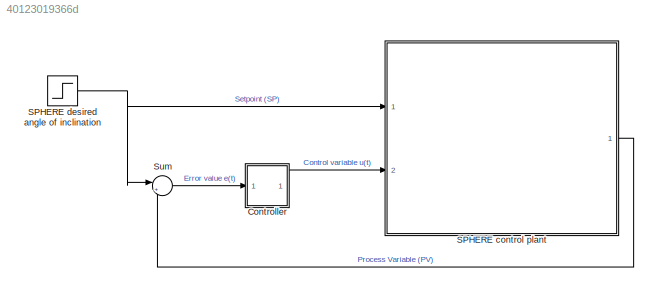
MODEL slx_40123019366d
KIND model
CONFIG AbsTol = auto
CONFIG EnableMultiTasking = off
CONFIG FixedStep = 0.01428571
CONFIG MaxStep = auto
CONFIG MinStep = auto
CONFIG RelTol = 1e-3
CONFIG SampleTimeConstraint = Unconstrained
CONFIG Solver = ode4
CONFIG SolverName = ode4
CONFIG StartTime = 0.0
CONFIG StopTime = 100
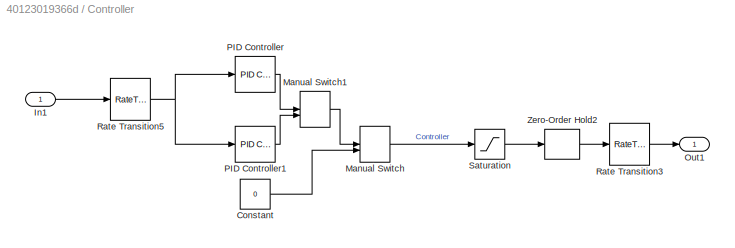
BLOCK [SubSystem] Controller
  Ports = [1, 1]
  RequestExecContextInheritance = off
BLOCK [Constant] Controller/Constant
  Value = 0
BLOCK [Inport] Controller/In1
BLOCK [ManualSwitch] Controller/Manual Switch
BLOCK [ManualSwitch] Controller/Manual Switch1
  CurrentSetting = 0
BLOCK [Outport] Controller/Out1
BLOCK [Reference] Controller/PID Controller  REF=simulink/Continuous/PID Controller
  Ports = [1, 1]
  SourceBlock = simulink/Continuous/PID Controller
  SourceProductBaseCode = SL
  SourceType = PID 1dof
BLOCK [Reference] Controller/PID Controller1  REF=simulink/Continuous/PID Controller
  Ports = [1, 1]
  SourceBlock = simulink/Continuous/PID Controller
  SourceProductBaseCode = SL
  SourceType = PID 1dof
BLOCK [RateTransition] Controller/Rate Transition3
BLOCK [RateTransition] Controller/Rate Transition5
BLOCK [Saturate] Controller/Saturation
  LowerLimit = -60
  UpperLimit = 60
BLOCK [ZeroOrderHold] Controller/Zero-Order Hold2
  SampleTime = -1
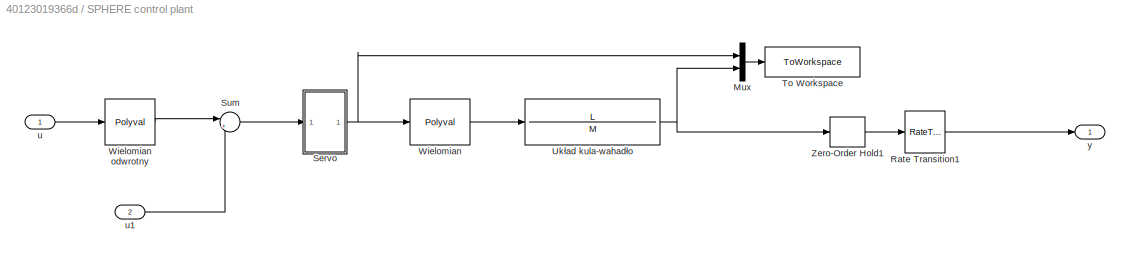
BLOCK [SubSystem] SPHERE control plant
  Ports = [2, 1]
  RequestExecContextInheritance = off
BLOCK [Mux] SPHERE control plant/Mux
  DisplayOption = bar
  Inputs = 2
  Ports = [2, 1]
BLOCK [RateTransition] SPHERE control plant/Rate Transition1
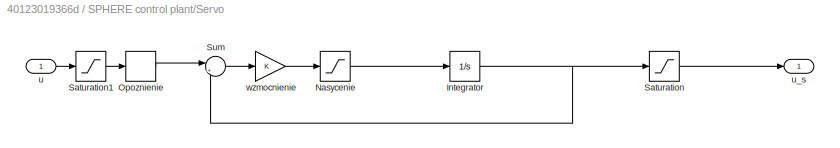
BLOCK [SubSystem] SPHERE control plant/Servo
  Ports = [1, 1]
  RequestExecContextInheritance = off
BLOCK [Integrator] SPHERE control plant/Servo/Integrator
  Ports = [1, 1]
BLOCK [Saturate] SPHERE control plant/Servo/Nasycenie
  LowerLimit = Smin
  UpperLimit = Smax
BLOCK [TransportDelay] SPHERE control plant/Servo/Opoznienie
  DelayTime = Top
  Ports = [1, 1]
BLOCK [Saturate] SPHERE control plant/Servo/Saturation
  LowerLimit = -60
  UpperLimit = 60
BLOCK [Saturate] SPHERE control plant/Servo/Saturation1
  LowerLimit = -60
  UpperLimit = 60
BLOCK [Sum] SPHERE control plant/Servo/Sum
  Inputs = |+-
  Ports = [2, 1]
BLOCK [Inport] SPHERE control plant/Servo/u
BLOCK [Outport] SPHERE control plant/Servo/u_s
BLOCK [Gain] SPHERE control plant/Servo/wzmocnienie
  Gain = K
BLOCK [Sum] SPHERE control plant/Sum
  Inputs = |++
  Ports = [2, 1]
BLOCK [ToWorkspace] SPHERE control plant/To Workspace
  MaxDataPoints = inf
  Ports = [1]
  SampleTime = -1
  SaveFormat = Structure With Time
  VariableName = robot_data
BLOCK [TransferFcn] SPHERE control plant/Układ kula-wahadło
  Denominator = M
  Numerator = L
BLOCK [Polyval] SPHERE control plant/Wielomian
  Coefs = [-0.000067 -0.000287 0.871698 0]
BLOCK [Polyval] SPHERE control plant/Wielomian odwrotny
  Coefs = [0.000325 0.001274 1.044515 0]
BLOCK [ZeroOrderHold] SPHERE control plant/Zero-Order Hold1
  SampleTime = -1
BLOCK [Inport] SPHERE control plant/u
BLOCK [Inport] SPHERE control plant/u1
  Port = 2
BLOCK [Outport] SPHERE control plant/y
BLOCK [Step] SPHERE desired angle of inclination
  After = Final_val
  SampleTime = 0
  Time = Step_time
BLOCK [Sum] Sum
  Inputs = |+-
  Ports = [2, 1]
LINE Controller/Constant:1 -> Controller/Manual Switch:2
LINE Controller/In1:1 -> Controller/Rate Transition5:1
LINE Controller/Manual Switch1:1 -> Controller/Manual Switch:1
LINE Controller/Manual Switch:1 -> Controller/Saturation:1
LINE Controller/PID Controller1:1 -> Controller/Manual Switch1:2
LINE Controller/PID Controller:1 -> Controller/Manual Switch1:1
LINE Controller/Rate Transition3:1 -> Controller/Out1:1
NET Controller/Rate Transition5:1 -> Controller/PID Controller1:1, Controller/PID Controller:1
LINE Controller/Saturation:1 -> Controller/Zero-Order Hold2:1
LINE Controller/Zero-Order Hold2:1 -> Controller/Rate Transition3:1
LINE Controller:1 -> SPHERE control plant:2
LINE SPHERE control plant/Mux:1 -> SPHERE control plant/To Workspace:1
LINE SPHERE control plant/Rate Transition1:1 -> SPHERE control plant/y:1
NET SPHERE control plant/Servo/Integrator:1 -> SPHERE control plant/Servo/Saturation:1, SPHERE control plant/Servo/Sum:2
LINE SPHERE control plant/Servo/Nasycenie:1 -> SPHERE control plant/Servo/Integrator:1
LINE SPHERE control plant/Servo/Opoznienie:1 -> SPHERE control plant/Servo/Sum:1
LINE SPHERE control plant/Servo/Saturation1:1 -> SPHERE control plant/Servo/Opoznienie:1
LINE SPHERE control plant/Servo/Saturation:1 -> SPHERE control plant/Servo/u_s:1
LINE SPHERE control plant/Servo/Sum:1 -> SPHERE control plant/Servo/wzmocnienie:1
LINE SPHERE control plant/Servo/u:1 -> SPHERE control plant/Servo/Saturation1:1
LINE SPHERE control plant/Servo/wzmocnienie:1 -> SPHERE control plant/Servo/Nasycenie:1
NET SPHERE control plant/Servo:1 -> SPHERE control plant/Mux:1, SPHERE control plant/Wielomian:1
LINE SPHERE control plant/Sum:1 -> SPHERE control plant/Servo:1
NET SPHERE control plant/Układ kula-wahadło:1 -> SPHERE control plant/Mux:2, SPHERE control plant/Zero-Order Hold1:1
LINE SPHERE control plant/Wielomian odwrotny:1 -> SPHERE control plant/Sum:1
LINE SPHERE control plant/Wielomian:1 -> SPHERE control plant/Układ kula-wahadło:1
LINE SPHERE control plant/Zero-Order Hold1:1 -> SPHERE control plant/Rate Transition1:1
LINE SPHERE control plant/u1:1 -> SPHERE control plant/Sum:2
LINE SPHERE control plant/u:1 -> SPHERE control plant/Wielomian odwrotny:1
LINE SPHERE control plant:1 -> Sum:2
NET SPHERE desired angle of inclination:1 -> SPHERE control plant:1, Sum:1
LINE Sum:1 -> Controller:1
note: NET lines group one-source signal fan-out (src -> all destinations, sorted); 1:1 wires keep LINE
